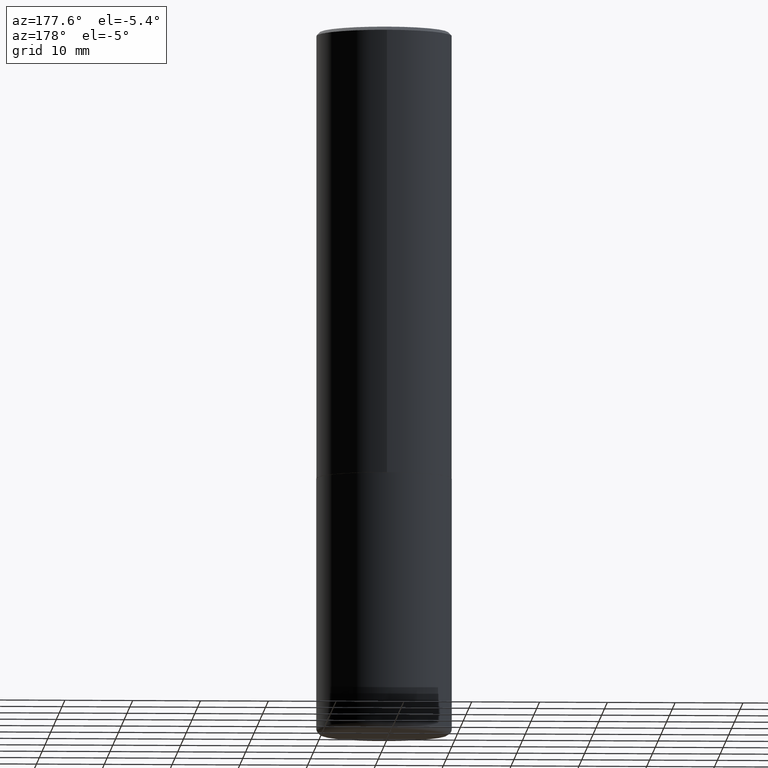
[diagram: clean part render]
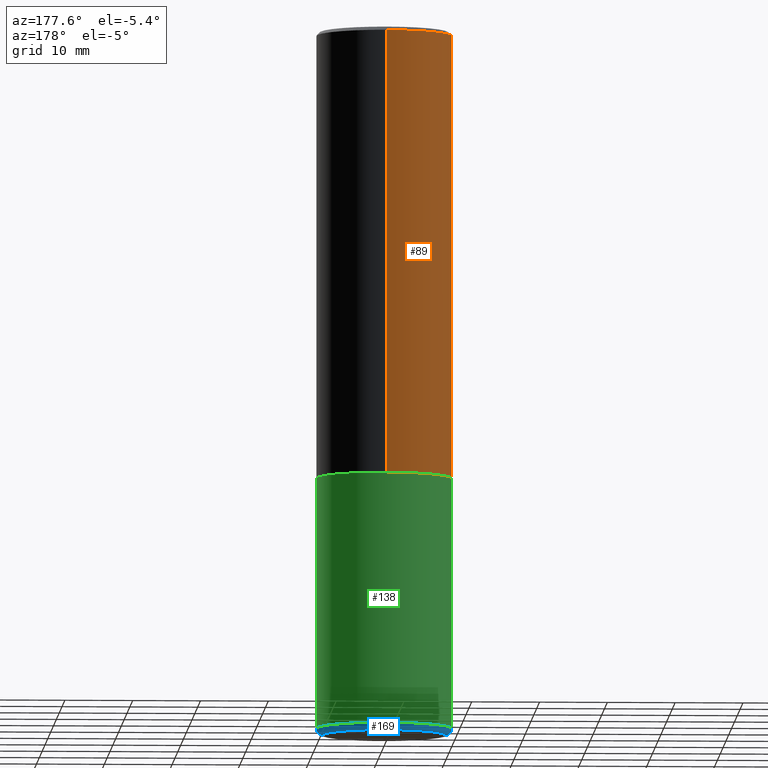
[diagram: same view with three faces highlighted in distinct colors, each labeled with its STEP entity id]
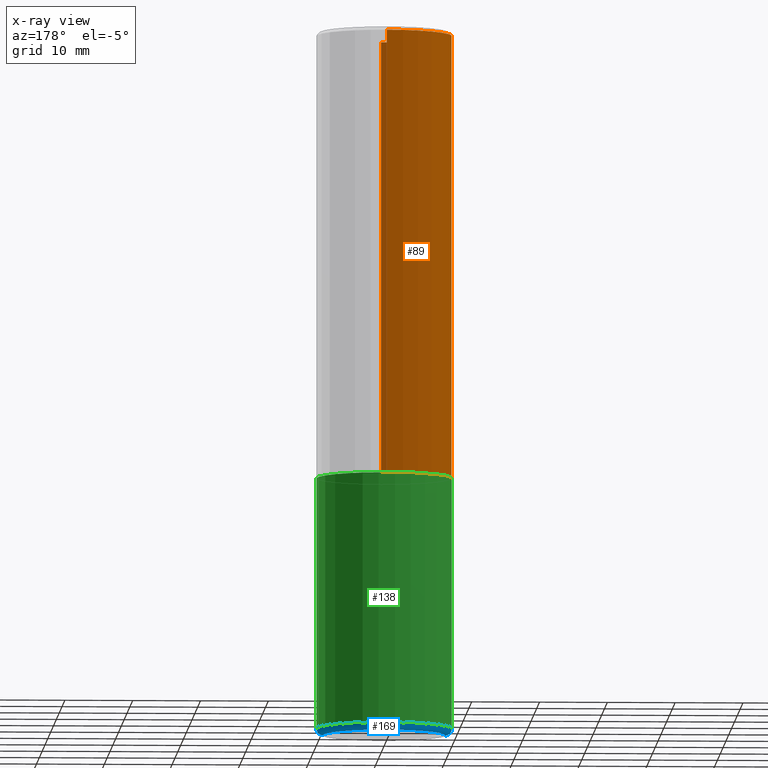
[diagram: x-ray of the same camera — body ghosted, the three highlighted faces saturated]
A machine part, auxiliary view with three faces highlighted in distinct colors.
The next image is the same camera in x-ray (body ghosted, the three faces saturated) — at least one of them is partly hidden behind the body in this view.
Their STEP definitions:

[orange] entity #89 — the highlighted cylindrical surface (partial cylindrical patch) has radius 10 mm, axis along (-0, 0, 1).
#18 = DIRECTION ( 'NONE',  ( -2.445058808808776392E-29, 3.492068478421694670E-15, 1.000000000000000000 ) ) ;
#25 = VERTEX_POINT ( 'NONE', #77 ) ;
#53 = ORIENTED_EDGE ( 'NONE', *, *, #112, .T. ) ;
#58 = LINE ( 'NONE', #189, #389 ) ;
#61 = CARTESIAN_POINT ( 'NONE',  ( -2.749192406205021291E-15, -0.3937000000000093758, -2.597399999999999043 ) ) ;
#77 = CARTESIAN_POINT ( 'NONE',  ( 2.749192406205083217E-15, 0.3936999999999999389, -0.02000000000000146105 ) ) ;
#83 = VECTOR ( 'NONE', #119, 39.37007874015748143 ) ;
#89 = ADVANCED_FACE ( 'NONE', ( #375 ), #341, .T. ) ;
#104 = AXIS2_PLACEMENT_3D ( 'NONE', #303, #157, #319 ) ;
#112 = EDGE_CURVE ( 'NONE', #252, #290, #146, .T. ) ;
#117 = DIRECTION ( 'NONE',  ( -6.982962677686265922E-15, -1.000000000000000000, 3.492068478421694670E-15 ) ) ;
#119 = DIRECTION ( 'NONE',  ( -2.445058808808776111E-29, 3.492068478421695064E-15, 1.000000000000000000 ) ) ;
#135 = CARTESIAN_POINT ( 'NONE',  ( 2.797406750687547524E-15, 0.3936999999999912236, -2.597400000000002152 ) ) ;
#145 = CIRCLE ( 'NONE', #104, 0.3937000000000000499 ) ;
#146 = LINE ( 'NONE', #286, #83 ) ;
#157 = DIRECTION ( 'NONE',  ( -2.445058808808776392E-29, 3.492068478421694670E-15, 1.000000000000000000 ) ) ;
#172 = CARTESIAN_POINT ( 'NONE',  ( -2.700978061722651252E-15, -0.3937000000000001054, -0.01999999999999870978 ) ) ;
#187 = CARTESIAN_POINT ( 'NONE',  ( 6.350795749999916474E-29, -9.070298665852512644E-15, -2.597400000000000375 ) ) ;
#189 = CARTESIAN_POINT ( 'NONE',  ( 2.797406750687515181E-15, 0.3937000000000001609, -1.374827359954621742E-15 ) ) ;
#199 = EDGE_CURVE ( 'NONE', #413, #252, #340, .T. ) ;
#205 = EDGE_CURVE ( 'NONE', #413, #25, #58, .T. ) ;
#225 = ORIENTED_EDGE ( 'NONE', *, *, #205, .F. ) ;
#228 = DIRECTION ( 'NONE',  ( -6.982962677686265922E-15, -1.000000000000000000, 4.163344669033672479E-15 ) ) ;
#235 = AXIS2_PLACEMENT_3D ( 'NONE', #187, #258, #228 ) ;
#239 = ORIENTED_EDGE ( 'NONE', *, *, #199, .T. ) ;
#240 = EDGE_CURVE ( 'NONE', #25, #290, #145, .T. ) ;
#252 = VERTEX_POINT ( 'NONE', #61 ) ;
#258 = DIRECTION ( 'NONE',  ( -2.445058808808776392E-29, 3.492068478421694670E-15, 1.000000000000000000 ) ) ;
#283 = CARTESIAN_POINT ( 'NONE',  ( 0.000000000000000000, 0.000000000000000000, 0.000000000000000000 ) ) ;
#286 = CARTESIAN_POINT ( 'NONE',  ( -2.749192406205084005E-15, -0.3937000000000001609, 1.374827359954621742E-15 ) ) ;
#290 = VERTEX_POINT ( 'NONE', #172 ) ;
#303 = CARTESIAN_POINT ( 'NONE',  ( 4.890117617617573732E-31, -6.984136956843418330E-17, -0.02000000000000008715 ) ) ;
#319 = DIRECTION ( 'NONE',  ( -6.982962677686265133E-15, -1.000000000000000000, 3.491137977679279424E-15 ) ) ;
#340 = CIRCLE ( 'NONE', #235, 0.3937000000000002720 ) ;
#341 = CYLINDRICAL_SURFACE ( 'NONE', #376, 0.3937000000000001609 ) ;
#365 = EDGE_LOOP ( 'NONE', ( #225, #239, #53, #385 ) ) ;
#375 = FACE_OUTER_BOUND ( 'NONE', #365, .T. ) ;
#376 = AXIS2_PLACEMENT_3D ( 'NONE', #283, #18, #117 ) ;
#384 = DIRECTION ( 'NONE',  ( -2.445058808808776111E-29, 3.492068478421695064E-15, 1.000000000000000000 ) ) ;
#385 = ORIENTED_EDGE ( 'NONE', *, *, #240, .F. ) ;
#389 = VECTOR ( 'NONE', #384, 39.37007874015748143 ) ;
#413 = VERTEX_POINT ( 'NONE', #135 ) ;

[blue] entity #169 — the highlighted toroidal blend (fillet) surface has major radius 8.9992 mm and minor (blend) radius 1.0008 mm.
#3 = CIRCLE ( 'NONE', #35, 0.3937000000000001054 ) ;
#9 = CARTESIAN_POINT ( 'NONE',  ( 1.001297202692504215E-28, -1.429587034189326149E-14, -4.094500000000000028 ) ) ;
#14 = CIRCLE ( 'NONE', #304, 0.03940000000000005997 ) ;
#35 = AXIS2_PLACEMENT_3D ( 'NONE', #333, #101, #334 ) ;
#36 = AXIS2_PLACEMENT_3D ( 'NONE', #160, #417, #129 ) ;
#38 = DIRECTION ( 'NONE',  ( -2.445468806185136597E-29, 3.491481338843145583E-15, 1.000000000000000000 ) ) ;
#62 = VERTEX_POINT ( 'NONE', #203 ) ;
#63 = CIRCLE ( 'NONE', #36, 0.03940000000000005997 ) ;
#65 = VERTEX_POINT ( 'NONE', #81 ) ;
#81 = CARTESIAN_POINT ( 'NONE',  ( 0.3937000000000001054, -1.690749838334792550E-14, -4.055100000000000371 ) ) ;
#96 = DIRECTION ( 'NONE',  ( -1.000000000000000000, 7.105427357601014480E-15, 0.000000000000000000 ) ) ;
#101 = DIRECTION ( 'NONE',  ( -2.445468806185136597E-29, 3.491481338843145583E-15, 1.000000000000000000 ) ) ;
#129 = DIRECTION ( 'NONE',  ( 1.000000000000000000, -6.982962677686267499E-15, 0.000000000000000000 ) ) ;
#131 = EDGE_LOOP ( 'NONE', ( #195, #326, #153, #323 ) ) ;
#153 = ORIENTED_EDGE ( 'NONE', *, *, #393, .F. ) ;
#160 = CARTESIAN_POINT ( 'NONE',  ( 0.3543000000000000038, -1.663236965384708391E-14, -4.055100000000000371 ) ) ;
#169 = ADVANCED_FACE ( 'NONE', ( #410 ), #302, .T. ) ;
#191 = CARTESIAN_POINT ( 'NONE',  ( 0.3543000000000000038, -1.676993401859750628E-14, -4.094500000000000028 ) ) ;
#195 = ORIENTED_EDGE ( 'NONE', *, *, #342, .T. ) ;
#203 = CARTESIAN_POINT ( 'NONE',  ( -0.3937000000000001054, -1.136089922645532513E-14, -4.055100000000000371 ) ) ;
#209 = AXIS2_PLACEMENT_3D ( 'NONE', #378, #390, #349 ) ;
#229 = VERTEX_POINT ( 'NONE', #322 ) ;
#256 = CARTESIAN_POINT ( 'NONE',  ( -0.3543000000000000038, -1.164085306434480532E-14, -4.055100000000000371 ) ) ;
#257 = VERTEX_POINT ( 'NONE', #191 ) ;
#268 = EDGE_CURVE ( 'NONE', #257, #65, #63, .T. ) ;
#270 = EDGE_CURVE ( 'NONE', #229, #62, #14, .T. ) ;
#276 = AXIS2_PLACEMENT_3D ( 'NONE', #9, #38, #392 ) ;
#302 = TOROIDAL_SURFACE ( 'NONE', #209, 0.3543000000000000038, 0.03940000000000009467 ) ;
#304 = AXIS2_PLACEMENT_3D ( 'NONE', #256, #386, #96 ) ;
#308 = CIRCLE ( 'NONE', #276, 0.3543000000000000038 ) ;
#322 = CARTESIAN_POINT ( 'NONE',  ( -0.3543000000000000038, -1.156965832777527483E-14, -4.094500000000000028 ) ) ;
#323 = ORIENTED_EDGE ( 'NONE', *, *, #268, .F. ) ;
#326 = ORIENTED_EDGE ( 'NONE', *, *, #270, .T. ) ;
#333 = CARTESIAN_POINT ( 'NONE',  ( 9.916620555961347550E-29, -1.415830597714284070E-14, -4.055100000000000371 ) ) ;
#334 = DIRECTION ( 'NONE',  ( 1.000000000000000000, -6.982962677686266711E-15, 0.000000000000000000 ) ) ;
#342 = EDGE_CURVE ( 'NONE', #257, #229, #308, .T. ) ;
#349 = DIRECTION ( 'NONE',  ( 1.000000000000000000, -6.982962677686266711E-15, 4.883557194083112340E-29 ) ) ;
#378 = CARTESIAN_POINT ( 'NONE',  ( 9.916620555961347550E-29, -1.415830597714284070E-14, -4.055100000000000371 ) ) ;
#386 = DIRECTION ( 'NONE',  ( 7.105427357601001859E-15, 1.000000000000000000, -3.491481338843145583E-15 ) ) ;
#390 = DIRECTION ( 'NONE',  ( -2.445468806185136597E-29, 3.491481338843145583E-15, 1.000000000000000000 ) ) ;
#392 = DIRECTION ( 'NONE',  ( 1.000000000000000000, -6.982962677686266711E-15, 0.000000000000000000 ) ) ;
#393 = EDGE_CURVE ( 'NONE', #65, #62, #3, .T. ) ;
#410 = FACE_OUTER_BOUND ( 'NONE', #131, .T. ) ;
#417 = DIRECTION ( 'NONE',  ( -6.982962677686266711E-15, -1.000000000000000000, 3.491481338843145583E-15 ) ) ;

[green] entity #138 — the highlighted cylindrical surface (partial cylindrical patch) has radius 10 mm, axis along (-0, 0, 1).
#3 = CIRCLE ( 'NONE', #35, 0.3937000000000001054 ) ;
#21 = DIRECTION ( 'NONE',  ( -2.445468806185136877E-29, 3.491481338843145188E-15, 1.000000000000000000 ) ) ;
#35 = AXIS2_PLACEMENT_3D ( 'NONE', #333, #101, #334 ) ;
#39 = VECTOR ( 'NONE', #21, 39.37007874015748143 ) ;
#40 = CARTESIAN_POINT ( 'NONE',  ( -0.3937000000000001054, 2.797406750687515181E-15, -1.936584745033357016E-29 ) ) ;
#62 = VERTEX_POINT ( 'NONE', #203 ) ;
#65 = VERTEX_POINT ( 'NONE', #81 ) ;
#69 = DIRECTION ( 'NONE',  ( -2.445468806185136597E-29, 3.491481338843145583E-15, 1.000000000000000000 ) ) ;
#73 = CARTESIAN_POINT ( 'NONE',  ( 6.354306145991459756E-29, -9.072265110850031044E-15, -2.598400000000000265 ) ) ;
#81 = CARTESIAN_POINT ( 'NONE',  ( 0.3937000000000001054, -1.690749838334792550E-14, -4.055100000000000371 ) ) ;
#82 = EDGE_CURVE ( 'NONE', #62, #260, #383, .T. ) ;
#90 = DIRECTION ( 'NONE',  ( -2.445468806185136597E-29, 3.491481338843145583E-15, 1.000000000000000000 ) ) ;
#101 = DIRECTION ( 'NONE',  ( -2.445468806185136597E-29, 3.491481338843145583E-15, 1.000000000000000000 ) ) ;
#110 = ORIENTED_EDGE ( 'NONE', *, *, #220, .F. ) ;
#136 = DIRECTION ( 'NONE',  ( 1.000000000000000000, -6.982962677686267499E-15, 0.000000000000000000 ) ) ;
#138 = ADVANCED_FACE ( 'NONE', ( #402 ), #280, .T. ) ;
#139 = CIRCLE ( 'NONE', #380, 0.3937000000000000499 ) ;
#155 = DIRECTION ( 'NONE',  ( 1.000000000000000000, -6.982962677686266711E-15, 4.876176775795935793E-29 ) ) ;
#166 = DIRECTION ( 'NONE',  ( -2.445468806185136877E-29, 3.491481338843145188E-15, 1.000000000000000000 ) ) ;
#192 = VERTEX_POINT ( 'NONE', #197 ) ;
#197 = CARTESIAN_POINT ( 'NONE',  ( 0.3937000000000000499, -1.182145751705511584E-14, -2.598400000000000265 ) ) ;
#198 = EDGE_LOOP ( 'NONE', ( #382, #321, #408, #110 ) ) ;
#203 = CARTESIAN_POINT ( 'NONE',  ( -0.3937000000000001054, -1.136089922645532513E-14, -4.055100000000000371 ) ) ;
#217 = VECTOR ( 'NONE', #166, 39.37007874015748143 ) ;
#220 = EDGE_CURVE ( 'NONE', #65, #192, #226, .T. ) ;
#226 = LINE ( 'NONE', #251, #217 ) ;
#251 = CARTESIAN_POINT ( 'NONE',  ( 0.3937000000000001054, -2.749192406205084005E-15, 1.919750796630860452E-29 ) ) ;
#260 = VERTEX_POINT ( 'NONE', #325 ) ;
#280 = CYLINDRICAL_SURFACE ( 'NONE', #338, 0.3937000000000001054 ) ;
#321 = ORIENTED_EDGE ( 'NONE', *, *, #82, .T. ) ;
#325 = CARTESIAN_POINT ( 'NONE',  ( -0.3937000000000000499, -8.817878793308920298E-15, -2.598400000000000265 ) ) ;
#332 = EDGE_CURVE ( 'NONE', #192, #260, #139, .T. ) ;
#333 = CARTESIAN_POINT ( 'NONE',  ( 9.916620555961347550E-29, -1.415830597714284070E-14, -4.055100000000000371 ) ) ;
#334 = DIRECTION ( 'NONE',  ( 1.000000000000000000, -6.982962677686266711E-15, 0.000000000000000000 ) ) ;
#338 = AXIS2_PLACEMENT_3D ( 'NONE', #371, #90, #155 ) ;
#371 = CARTESIAN_POINT ( 'NONE',  ( 0.000000000000000000, 0.000000000000000000, 0.000000000000000000 ) ) ;
#380 = AXIS2_PLACEMENT_3D ( 'NONE', #73, #69, #136 ) ;
#382 = ORIENTED_EDGE ( 'NONE', *, *, #393, .T. ) ;
#383 = LINE ( 'NONE', #40, #39 ) ;
#393 = EDGE_CURVE ( 'NONE', #65, #62, #3, .T. ) ;
#402 = FACE_OUTER_BOUND ( 'NONE', #198, .T. ) ;
#408 = ORIENTED_EDGE ( 'NONE', *, *, #332, .F. ) ;